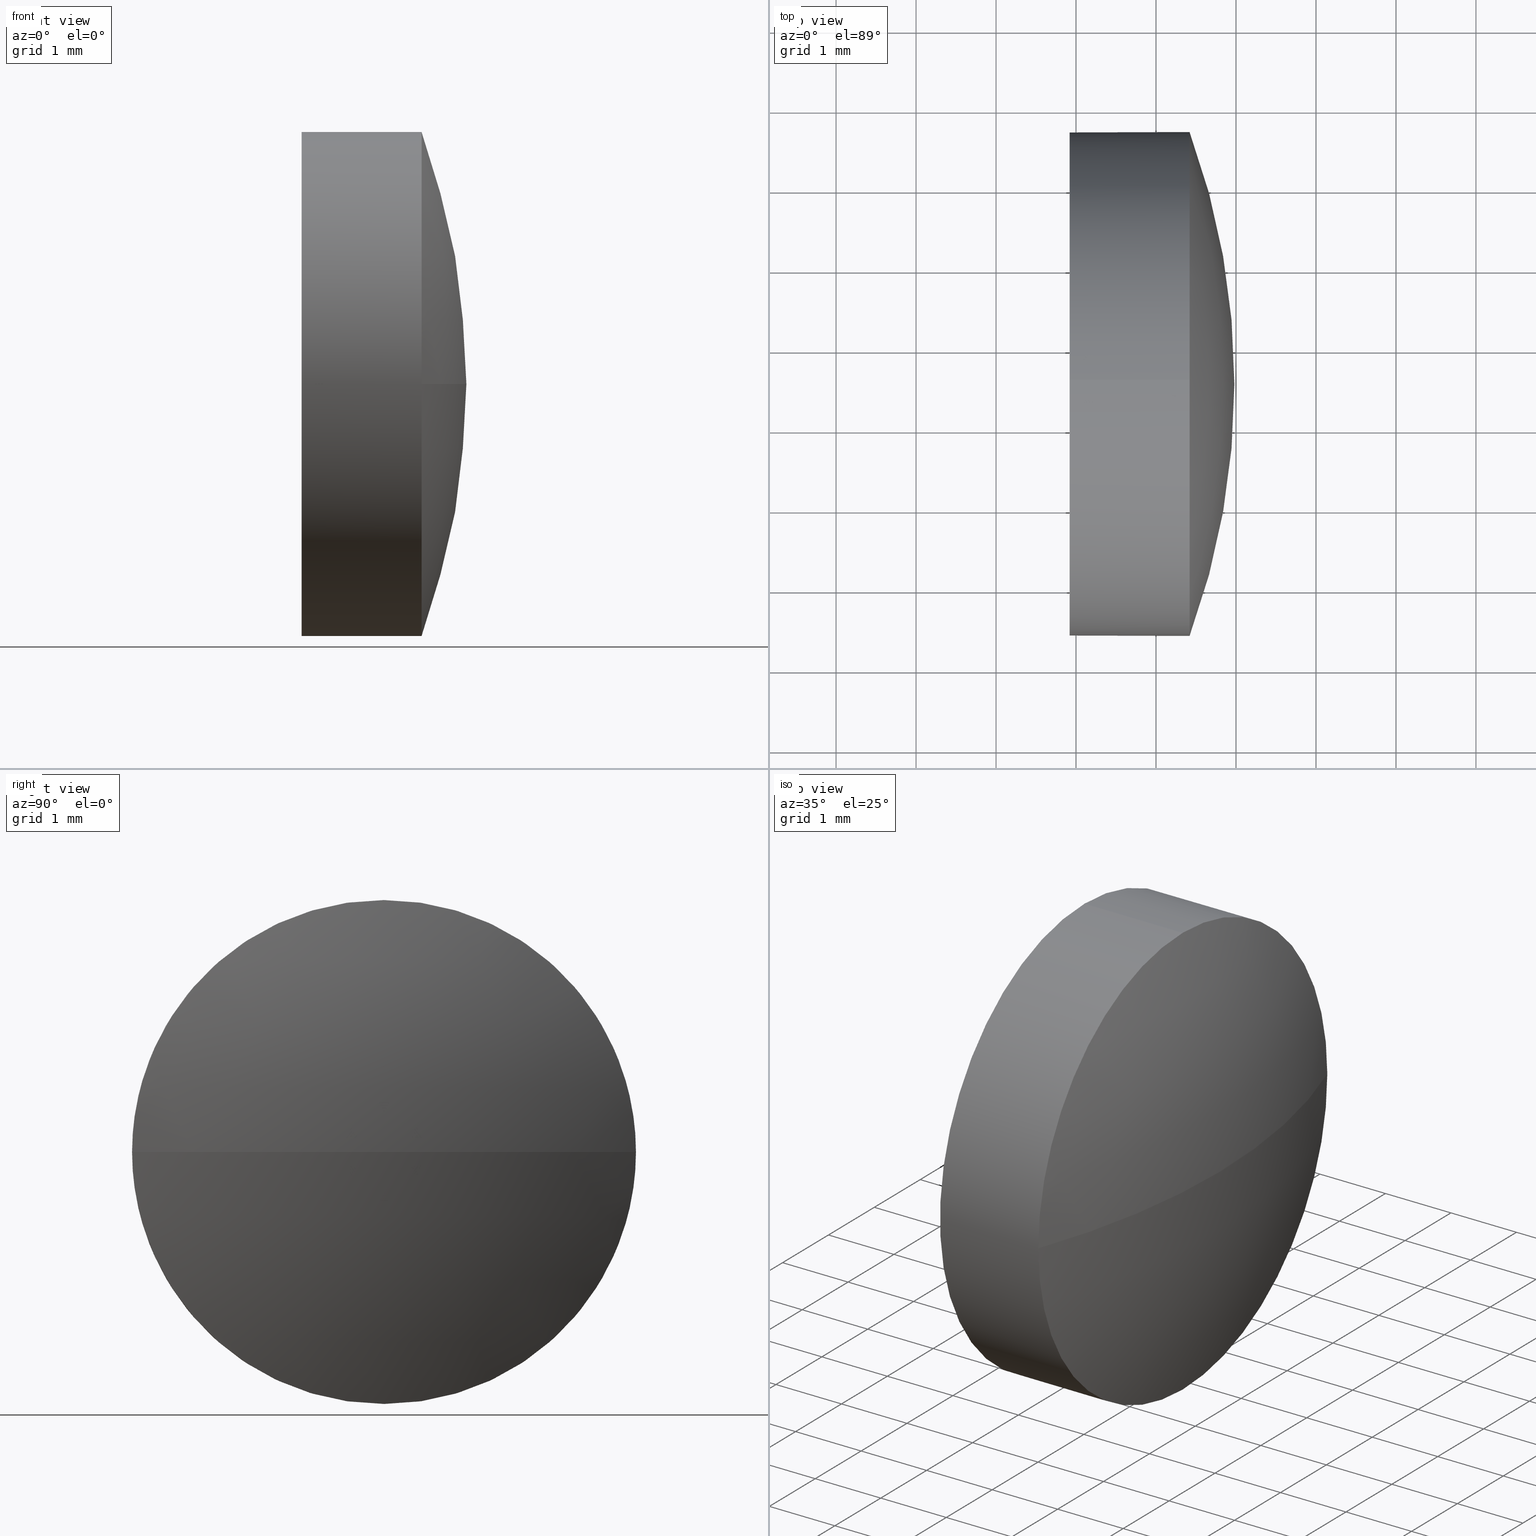
[diagram: canonical four-view strip — front | top / right | iso, engineering-drawing reading convention]
A machine part, canonical four-view strip (front | top / right | iso — engineering-drawing reading convention). The complete STEP part file that produces these views, byte-faithful:
ISO-10303-21;
HEADER;
FILE_DESCRIPTION (( 'STEP AP214' ),
    '1' );
FILE_NAME ('100352.STEP',
    '2019-06-03T03:29:45',
    ( '' ),
    ( '' ),
    'SwSTEP 2.0',
    'SolidWorks 2016',
    '' );
FILE_SCHEMA (( 'AUTOMOTIVE_DESIGN' ));
ENDSEC;

DATA;
#1 = CLOSED_SHELL ( 'NONE', ( #36, #17, #164, #159, #4 ) ) ;
#2 = CARTESIAN_POINT ( 'NONE',  ( 437.0591980561945300, 10.55632833834806700, 3.149999999999999900 ) ) ;
#3 = DIRECTION ( 'NONE',  ( 1.000000000000000000, 0.0000000000000000000, 0.0000000000000000000 ) ) ;
#4 = ADVANCED_FACE ( 'NONE', ( #28 ), #65, .F. ) ;
#5 = CARTESIAN_POINT ( 'NONE',  ( 0.0000000000000000000, 0.0000000000000000000, 0.0000000000000000000 ) ) ;
#6 = SURFACE_STYLE_FILL_AREA ( #184 ) ;
#7 = STYLED_ITEM ( 'NONE', ( #168 ), #73 ) ;
#8 = CARTESIAN_POINT ( 'NONE',  ( 437.9198361449435900, 10.55632833834806700, -3.149999999999999900 ) ) ;
#9 = EDGE_CURVE ( 'NONE', #101, #160, #153, .T. ) ;
#10 = DIRECTION ( 'NONE',  ( 0.0000000000000000000, 1.000000000000000000, 1.224646799147353000E-016 ) ) ;
#11 = EDGE_CURVE ( 'NONE', #99, #75, #61, .T. ) ;
#12 = VERTEX_POINT ( 'NONE', #18 ) ;
#13 = PRODUCT_DEFINITION ( 'δ֪', '', #82, #74 ) ;
#14 = AXIS2_PLACEMENT_3D ( 'NONE', #146, #179, #83 ) ;
#15 = FACE_OUTER_BOUND ( 'NONE', #178, .T. ) ;
#16 = MECHANICAL_DESIGN_GEOMETRIC_PRESENTATION_REPRESENTATION (  '', ( #30 ), #117 ) ;
#17 = ADVANCED_FACE ( 'NONE', ( #15 ), #43, .T. ) ;
#18 = CARTESIAN_POINT ( 'NONE',  ( 439.4198361449435900, 7.406328338348058300, -3.857637417314170600E-016 ) ) ;
#19 = CARTESIAN_POINT ( 'NONE',  ( 437.9198361449435900, 10.55632833834806700, 0.0000000000000000000 ) ) ;
#20 = CARTESIAN_POINT ( 'NONE',  ( 437.9198361449435900, 10.55632833834806700, 3.149999999999999900 ) ) ;
#21 = ORIENTED_EDGE ( 'NONE', *, *, #182, .F. ) ;
#22 = DIRECTION ( 'NONE',  ( 0.0000000000000000000, 0.0000000000000000000, 1.000000000000000000 ) ) ;
#23 = CARTESIAN_POINT ( 'NONE',  ( 439.9798361449435900, 10.55632833834806500, 0.0000000000000000000 ) ) ;
#24 =( LENGTH_UNIT ( ) NAMED_UNIT ( * ) SI_UNIT ( .MILLI., .METRE. ) );
#25 = AXIS2_PLACEMENT_3D ( 'NONE', #81, #116, #3 ) ;
#26 = APPLICATION_PROTOCOL_DEFINITION ( 'draft international standard', 'automotive_design', 1998, #87 ) ;
#27 = ORIENTED_EDGE ( 'NONE', *, *, #182, .T. ) ;
#28 = FACE_OUTER_BOUND ( 'NONE', #130, .T. ) ;
#29 = ORIENTED_EDGE ( 'NONE', *, *, #176, .T. ) ;
#30 = STYLED_ITEM ( 'NONE', ( #148 ), #161 ) ;
#31 = ORIENTED_EDGE ( 'NONE', *, *, #149, .T. ) ;
#32 = VECTOR ( 'NONE', #96, 1000.000000000000000 ) ;
#33 = DIRECTION ( 'NONE',  ( 0.0000000000000000000, 1.000000000000000000, 0.0000000000000000000 ) ) ;
#34 = PRODUCT_RELATED_PRODUCT_CATEGORY ( 'part', '', ( #79 ) ) ;
#35 = UNCERTAINTY_MEASURE_WITH_UNIT (LENGTH_MEASURE( 1.000000000000000100E-005 ), #110, 'distance_accuracy_value', 'NONE');
#36 = ADVANCED_FACE ( 'NONE', ( #126 ), #92, .T. ) ;
#37 = DIRECTION ( 'NONE',  ( -1.000000000000000000, -0.0000000000000000000, -0.0000000000000000000 ) ) ;
#38 = ORIENTED_EDGE ( 'NONE', *, *, #186, .F. ) ;
#39 = SURFACE_SIDE_STYLE ('',( #52 ) ) ;
#40 = DIRECTION ( 'NONE',  ( 0.0000000000000000000, 0.0000000000000000000, 1.000000000000000000 ) ) ;
#41 = VERTEX_POINT ( 'NONE', #8 ) ;
#42 = SURFACE_STYLE_USAGE ( .BOTH. , #39 ) ;
#43 = SPHERICAL_SURFACE ( 'NONE', #64, 9.139375000000058000 ) ;
#44 = PRESENTATION_LAYER_ASSIGNMENT (  '', '', ( #30 ) ) ;
#45 = ORIENTED_EDGE ( 'NONE', *, *, #11, .F. ) ;
#46 = FACE_OUTER_BOUND ( 'NONE', #109, .T. ) ;
#47 = ORIENTED_EDGE ( 'NONE', *, *, #91, .T. ) ;
#48 = CIRCLE ( 'NONE', #112, 3.149999999999999900 ) ;
#49 = CYLINDRICAL_SURFACE ( 'NONE', #78, 3.149999999999999900 ) ;
#50 = PRESENTATION_LAYER_ASSIGNMENT (  '', '', ( #7 ) ) ;
#51 = DIRECTION ( 'NONE',  ( 1.000000000000000000, 0.0000000000000000000, 0.0000000000000000000 ) ) ;
#52 = SURFACE_STYLE_FILL_AREA ( #166 ) ;
#53 = CARTESIAN_POINT ( 'NONE',  ( 439.4198361449435900, 10.55632833834806700, -3.149999999999999900 ) ) ;
#54 = DIRECTION ( 'NONE',  ( 0.0000000000000000000, 0.0000000000000000000, 1.000000000000000000 ) ) ;
#55 = DIRECTION ( 'NONE',  ( -0.0000000000000000000, 0.0000000000000000000, -1.000000000000000000 ) ) ;
#56 = VERTEX_POINT ( 'NONE', #53 ) ;
#57 = APPLICATION_PROTOCOL_DEFINITION ( 'draft international standard', 'automotive_design', 1998, #89 ) ;
#58 = CIRCLE ( 'NONE', #94, 3.149999999999999900 ) ;
#59 = ORIENTED_EDGE ( 'NONE', *, *, #174, .F. ) ;
#60 =( GEOMETRIC_REPRESENTATION_CONTEXT ( 3 ) GLOBAL_UNCERTAINTY_ASSIGNED_CONTEXT ( ( #63 ) ) GLOBAL_UNIT_ASSIGNED_CONTEXT ( ( #167, #137, #121 ) ) REPRESENTATION_CONTEXT ( 'NONE', 'WORKASPACE' ) );
#61 = LINE ( 'NONE', #2, #115 ) ;
#62 = ORIENTED_EDGE ( 'NONE', *, *, #165, .F. ) ;
#63 = UNCERTAINTY_MEASURE_WITH_UNIT (LENGTH_MEASURE( 1.000000000000000100E-005 ), #167, 'distance_accuracy_value', 'NONE');
#64 = AXIS2_PLACEMENT_3D ( 'NONE', #104, #162, #33 ) ;
#65 = PLANE ( 'NONE',  #152 ) ;
#66 = DIRECTION ( 'NONE',  ( -1.000000000000000000, -0.0000000000000000000, -0.0000000000000000000 ) ) ;
#67 = AXIS2_PLACEMENT_3D ( 'NONE', #105, #68, #133 ) ;
#68 = DIRECTION ( 'NONE',  ( -1.000000000000000000, -0.0000000000000000000, -0.0000000000000000000 ) ) ;
#69 = PRODUCT_DEFINITION_SHAPE ( 'NONE', 'NONE',  #13 ) ;
#70 = CARTESIAN_POINT ( 'NONE',  ( 430.8404611449435000, 10.55632833834806500, 0.0000000000000000000 ) ) ;
#71 = CARTESIAN_POINT ( 'NONE',  ( 439.4198361449435900, 10.55632833834806700, 0.0000000000000000000 ) ) ;
#72 = EDGE_LOOP ( 'NONE', ( #38, #177, #62, #180 ) ) ;
#73 = MANIFOLD_SOLID_BREP ( '��ת1', #1 ) ;
#74 = PRODUCT_DEFINITION_CONTEXT ( 'detailed design', #87, 'design' ) ;
#75 = VERTEX_POINT ( 'NONE', #20 ) ;
#76 = DIRECTION ( 'NONE',  ( 0.0000000000000000000, 0.0000000000000000000, 1.000000000000000000 ) ) ;
#77 = CIRCLE ( 'NONE', #86, 3.149999999999999900 ) ;
#78 = AXIS2_PLACEMENT_3D ( 'NONE', #106, #125, #181 ) ;
#79 = PRODUCT ( '100352', '100352', '', ( #114 ) ) ;
#80 = CIRCLE ( 'NONE', #171, 3.149999999999999900 ) ;
#81 = CARTESIAN_POINT ( 'NONE',  ( 430.8404611449435000, 10.55632833834806500, 0.0000000000000000000 ) ) ;
#82 = PRODUCT_DEFINITION_FORMATION_WITH_SPECIFIED_SOURCE ( '�κ�', '', #79, .NOT_KNOWN. ) ;
#83 = DIRECTION ( 'NONE',  ( 0.0000000000000000000, 0.0000000000000000000, 1.000000000000000000 ) ) ;
#84 = CARTESIAN_POINT ( 'NONE',  ( 437.0591980561945300, 10.55632833834806700, -3.149999999999999900 ) ) ;
#85 = CARTESIAN_POINT ( 'NONE',  ( 439.4198361449435900, 10.55632833834806700, 0.0000000000000000000 ) ) ;
#86 = AXIS2_PLACEMENT_3D ( 'NONE', #19, #124, #40 ) ;
#87 = APPLICATION_CONTEXT ( 'automotive_design' ) ;
#88 = ORIENTED_EDGE ( 'NONE', *, *, #11, .T. ) ;
#89 = APPLICATION_CONTEXT ( 'automotive_design' ) ;
#90 = COLOUR_RGB ( '',1.000000000000000000, 1.000000000000000000, 1.000000000000000000 ) ;
#91 = EDGE_CURVE ( 'NONE', #41, #75, #138, .T. ) ;
#92 = CYLINDRICAL_SURFACE ( 'NONE', #14, 3.149999999999999900 ) ;
#93 = SPHERICAL_SURFACE ( 'NONE', #123, 9.139375000000058000 ) ;
#94 = AXIS2_PLACEMENT_3D ( 'NONE', #169, #97, #22 ) ;
#95 = DIRECTION ( 'NONE',  ( -1.000000000000000000, -0.0000000000000000000, -0.0000000000000000000 ) ) ;
#96 = DIRECTION ( 'NONE',  ( -1.000000000000000000, -0.0000000000000000000, -0.0000000000000000000 ) ) ;
#97 = DIRECTION ( 'NONE',  ( -1.000000000000000000, -0.0000000000000000000, -0.0000000000000000000 ) ) ;
#98 = DIRECTION ( 'NONE',  ( 0.0000000000000000000, 1.000000000000000000, 0.0000000000000000000 ) ) ;
#99 = VERTEX_POINT ( 'NONE', #134 ) ;
#100 = UNCERTAINTY_MEASURE_WITH_UNIT (LENGTH_MEASURE( 1.000000000000000100E-005 ), #24, 'distance_accuracy_value', 'NONE');
#101 = VERTEX_POINT ( 'NONE', #23 ) ;
#102 = AXIS2_PLACEMENT_3D ( 'NONE', #170, #128, #10 ) ;
#103 = AXIS2_PLACEMENT_3D ( 'NONE', #120, #139, #136 ) ;
#104 = CARTESIAN_POINT ( 'NONE',  ( 430.8404611449435000, 10.55632833834806500, 0.0000000000000000000 ) ) ;
#105 = CARTESIAN_POINT ( 'NONE',  ( 437.9198361449435900, 10.55632833834806700, 0.0000000000000000000 ) ) ;
#106 = CARTESIAN_POINT ( 'NONE',  ( 437.0591980561945300, 10.55632833834806700, 0.0000000000000000000 ) ) ;
#107 = CARTESIAN_POINT ( 'NONE',  ( 439.4198361449435900, 13.70632833834807200, 0.0000000000000000000 ) ) ;
#108 = FILL_AREA_STYLE_COLOUR ( '', #90 ) ;
#109 = EDGE_LOOP ( 'NONE', ( #119, #27, #31, #88, #113 ) ) ;
#110 =( LENGTH_UNIT ( ) NAMED_UNIT ( * ) SI_UNIT ( .MILLI., .METRE. ) );
#111 = CIRCLE ( 'NONE', #103, 3.149999999999999900 ) ;
#112 = AXIS2_PLACEMENT_3D ( 'NONE', #85, #66, #54 ) ;
#113 = ORIENTED_EDGE ( 'NONE', *, *, #91, .F. ) ;
#114 = PRODUCT_CONTEXT ( 'NONE', #89, 'mechanical' ) ;
#115 = VECTOR ( 'NONE', #95, 1000.000000000000000 ) ;
#116 = DIRECTION ( 'NONE',  ( -0.0000000000000000000, 0.0000000000000000000, 1.000000000000000000 ) ) ;
#117 =( GEOMETRIC_REPRESENTATION_CONTEXT ( 3 ) GLOBAL_UNCERTAINTY_ASSIGNED_CONTEXT ( ( #100 ) ) GLOBAL_UNIT_ASSIGNED_CONTEXT ( ( #24, #143, #172 ) ) REPRESENTATION_CONTEXT ( 'NONE', 'WORKASPACE' ) );
#118 = DIRECTION ( 'NONE',  ( 0.0000000000000000000, 0.0000000000000000000, -1.000000000000000000 ) ) ;
#119 = ORIENTED_EDGE ( 'NONE', *, *, #176, .F. ) ;
#120 = CARTESIAN_POINT ( 'NONE',  ( 439.4198361449435900, 10.55632833834806700, 0.0000000000000000000 ) ) ;
#121 =( NAMED_UNIT ( * ) SI_UNIT ( $, .STERADIAN. ) SOLID_ANGLE_UNIT ( ) );
#122 = COLOUR_RGB ( '',1.000000000000000000, 1.000000000000000000, 1.000000000000000000 ) ;
#123 = AXIS2_PLACEMENT_3D ( 'NONE', #70, #55, #98 ) ;
#124 = DIRECTION ( 'NONE',  ( -1.000000000000000000, -0.0000000000000000000, -0.0000000000000000000 ) ) ;
#125 = DIRECTION ( 'NONE',  ( -1.000000000000000000, -0.0000000000000000000, -0.0000000000000000000 ) ) ;
#126 = FACE_OUTER_BOUND ( 'NONE', #144, .T. ) ;
#127 =( NAMED_UNIT ( * ) PLANE_ANGLE_UNIT ( ) SI_UNIT ( $, .RADIAN. ) );
#128 = DIRECTION ( 'NONE',  ( 0.0000000000000000000, 1.224646799147353200E-016, -1.000000000000000000 ) ) ;
#129 = DIRECTION ( 'NONE',  ( 1.000000000000000000, 0.0000000000000000000, 0.0000000000000000000 ) ) ;
#130 = EDGE_LOOP ( 'NONE', ( #173, #47 ) ) ;
#131 = EDGE_CURVE ( 'NONE', #160, #56, #48, .T. ) ;
#132 = CIRCLE ( 'NONE', #102, 9.139375000000058000 ) ;
#133 = DIRECTION ( 'NONE',  ( 0.0000000000000000000, 0.0000000000000000000, 1.000000000000000000 ) ) ;
#134 = CARTESIAN_POINT ( 'NONE',  ( 439.4198361449435900, 10.55632833834806700, 3.149999999999999900 ) ) ;
#135 = ORIENTED_EDGE ( 'NONE', *, *, #165, .T. ) ;
#136 = DIRECTION ( 'NONE',  ( 0.0000000000000000000, 0.0000000000000000000, 1.000000000000000000 ) ) ;
#137 =( NAMED_UNIT ( * ) PLANE_ANGLE_UNIT ( ) SI_UNIT ( $, .RADIAN. ) );
#138 = CIRCLE ( 'NONE', #67, 3.149999999999999900 ) ;
#139 = DIRECTION ( 'NONE',  ( -1.000000000000000000, -0.0000000000000000000, -0.0000000000000000000 ) ) ;
#140 =( GEOMETRIC_REPRESENTATION_CONTEXT ( 3 ) GLOBAL_UNCERTAINTY_ASSIGNED_CONTEXT ( ( #35 ) ) GLOBAL_UNIT_ASSIGNED_CONTEXT ( ( #110, #127, #154 ) ) REPRESENTATION_CONTEXT ( 'NONE', 'WORKASPACE' ) );
#141 = SURFACE_STYLE_USAGE ( .BOTH. , #142 ) ;
#142 = SURFACE_SIDE_STYLE ('',( #6 ) ) ;
#143 =( NAMED_UNIT ( * ) PLANE_ANGLE_UNIT ( ) SI_UNIT ( $, .RADIAN. ) );
#144 = EDGE_LOOP ( 'NONE', ( #150, #29, #59, #45, #135 ) ) ;
#145 = LINE ( 'NONE', #84, #32 ) ;
#146 = CARTESIAN_POINT ( 'NONE',  ( 437.0591980561945300, 10.55632833834806700, 0.0000000000000000000 ) ) ;
#147 = ORIENTED_EDGE ( 'NONE', *, *, #9, .F. ) ;
#148 = PRESENTATION_STYLE_ASSIGNMENT (( #141 ) ) ;
#149 = EDGE_CURVE ( 'NONE', #12, #99, #111, .T. ) ;
#150 = ORIENTED_EDGE ( 'NONE', *, *, #131, .T. ) ;
#151 = FILL_AREA_STYLE_COLOUR ( '', #122 ) ;
#152 = AXIS2_PLACEMENT_3D ( 'NONE', #158, #51, #118 ) ;
#153 = CIRCLE ( 'NONE', #25, 9.139375000000061500 ) ;
#154 =( NAMED_UNIT ( * ) SI_UNIT ( $, .STERADIAN. ) SOLID_ANGLE_UNIT ( ) );
#155 = FACE_OUTER_BOUND ( 'NONE', #72, .T. ) ;
#156 = ORIENTED_EDGE ( 'NONE', *, *, #131, .F. ) ;
#157 = MECHANICAL_DESIGN_GEOMETRIC_PRESENTATION_REPRESENTATION (  '', ( #7 ), #60 ) ;
#158 = CARTESIAN_POINT ( 'NONE',  ( 437.9198361449435900, 10.55632833834806700, 0.0000000000000000000 ) ) ;
#159 = ADVANCED_FACE ( 'NONE', ( #46 ), #49, .T. ) ;
#160 = VERTEX_POINT ( 'NONE', #107 ) ;
#161 = ADVANCED_BREP_SHAPE_REPRESENTATION ( '100352', ( #73, #175 ), #140 ) ;
#162 = DIRECTION ( 'NONE',  ( -0.0000000000000000000, 0.0000000000000000000, -1.000000000000000000 ) ) ;
#163 = DIRECTION ( 'NONE',  ( 0.0000000000000000000, 0.0000000000000000000, 1.000000000000000000 ) ) ;
#164 = ADVANCED_FACE ( 'NONE', ( #155 ), #93, .T. ) ;
#165 = EDGE_CURVE ( 'NONE', #99, #160, #80, .T. ) ;
#166 = FILL_AREA_STYLE ('',( #108 ) ) ;
#167 =( LENGTH_UNIT ( ) NAMED_UNIT ( * ) SI_UNIT ( .MILLI., .METRE. ) );
#168 = PRESENTATION_STYLE_ASSIGNMENT (( #42 ) ) ;
#169 = CARTESIAN_POINT ( 'NONE',  ( 439.4198361449435900, 10.55632833834806700, 0.0000000000000000000 ) ) ;
#170 = CARTESIAN_POINT ( 'NONE',  ( 430.8404611449435000, 10.55632833834806500, 0.0000000000000000000 ) ) ;
#171 = AXIS2_PLACEMENT_3D ( 'NONE', #71, #37, #163 ) ;
#172 =( NAMED_UNIT ( * ) SI_UNIT ( $, .STERADIAN. ) SOLID_ANGLE_UNIT ( ) );
#173 = ORIENTED_EDGE ( 'NONE', *, *, #174, .T. ) ;
#174 = EDGE_CURVE ( 'NONE', #75, #41, #77, .T. ) ;
#175 = AXIS2_PLACEMENT_3D ( 'NONE', #5, #76, #129 ) ;
#176 = EDGE_CURVE ( 'NONE', #56, #41, #145, .T. ) ;
#177 = ORIENTED_EDGE ( 'NONE', *, *, #9, .T. ) ;
#178 = EDGE_LOOP ( 'NONE', ( #147, #185, #21, #156 ) ) ;
#179 = DIRECTION ( 'NONE',  ( -1.000000000000000000, -0.0000000000000000000, -0.0000000000000000000 ) ) ;
#180 = ORIENTED_EDGE ( 'NONE', *, *, #149, .F. ) ;
#181 = DIRECTION ( 'NONE',  ( 0.0000000000000000000, 0.0000000000000000000, 1.000000000000000000 ) ) ;
#182 = EDGE_CURVE ( 'NONE', #56, #12, #58, .T. ) ;
#183 = SHAPE_DEFINITION_REPRESENTATION ( #69, #161 ) ;
#184 = FILL_AREA_STYLE ('',( #151 ) ) ;
#185 = ORIENTED_EDGE ( 'NONE', *, *, #186, .T. ) ;
#186 = EDGE_CURVE ( 'NONE', #101, #12, #132, .T. ) ;
ENDSEC;
END-ISO-10303-21;
